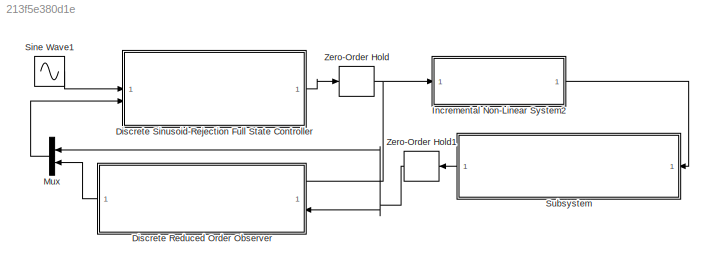
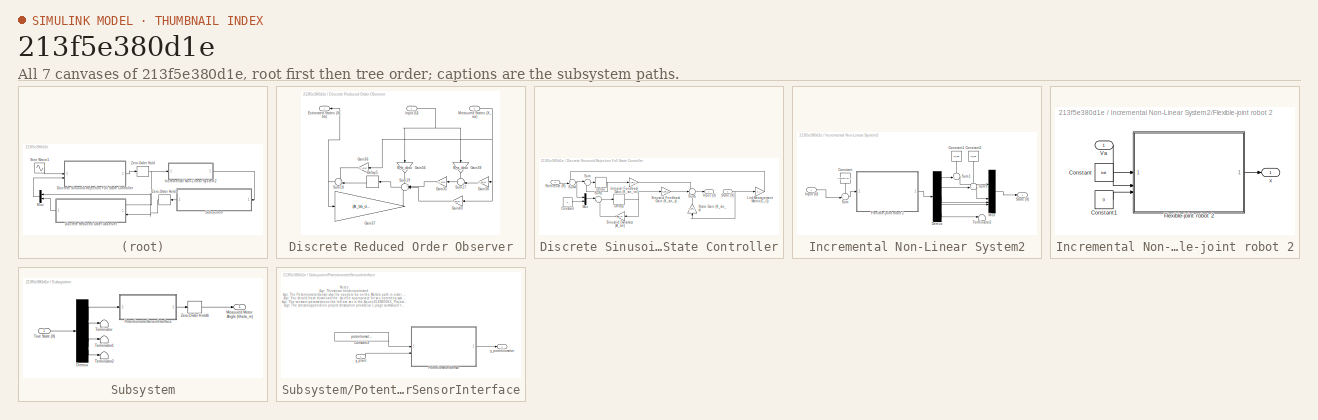
[diagram: thumbnail index - all 7 canvases of the model, root first then tree order]
MODEL slx_213f5e380d1e
KIND model
CONFIG AbsTol = auto
CONFIG EnableMultiTasking = off
CONFIG FixedStep = auto
CONFIG MaxStep = auto
CONFIG MinStep = auto
CONFIG RelTol = 1e-3
CONFIG SampleTimeConstraint = Unconstrained
CONFIG SolverName = VariableStepAuto
CONFIG StartTime = 0.0
CONFIG StopTime = 10.0
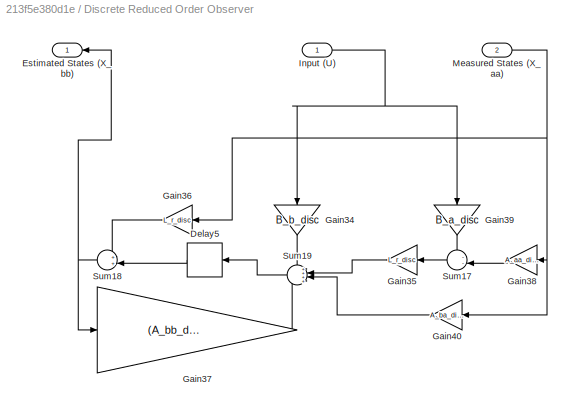
BLOCK [SubSystem] Discrete Reduced Order Observer
  NameLocation = top
BLOCK [Delay] Discrete Reduced Order Observer/Delay5
  DelayLength = 1
  InputPortMap = u0
  NameLocation = top
  SampleTime = min_sampling_time
BLOCK [Outport] Discrete Reduced Order Observer/Estimated States (X_bb)
  NameLocation = top
BLOCK [Gain] Discrete Reduced Order Observer/Gain34
  Gain = B_b_disc
  Multiplication = Matrix(K*u)
  NameLocation = left
BLOCK [Gain] Discrete Reduced Order Observer/Gain35
  Gain = L_r_disc
  Multiplication = Matrix(K*u)
  NameLocation = top
BLOCK [Gain] Discrete Reduced Order Observer/Gain36
  Gain = L_r_disc
  Multiplication = Matrix(K*u)
  NameLocation = top
BLOCK [Gain] Discrete Reduced Order Observer/Gain37
  Gain = (A_bb_disc - L_r_disc*A_ab_disc)
  Multiplication = Matrix(K*u)
BLOCK [Gain] Discrete Reduced Order Observer/Gain38
  Gain = A_aa_disc
  Multiplication = Matrix(K*u)
  NameLocation = top
BLOCK [Gain] Discrete Reduced Order Observer/Gain39
  Gain = B_a_disc
  Multiplication = Matrix(K*u)
  NameLocation = left
BLOCK [Gain] Discrete Reduced Order Observer/Gain40
  Gain = A_ba_disc
  Multiplication = Matrix(K*u)
  NameLocation = top
BLOCK [Inport] Discrete Reduced Order Observer/Input (U)
BLOCK [Inport] Discrete Reduced Order Observer/Measured States (X_aa)
  Port = 2
BLOCK [Sum] Discrete Reduced Order Observer/Sum17
  Inputs = --|
  NameLocation = top
BLOCK [Sum] Discrete Reduced Order Observer/Sum18
  Inputs = ++|
  NameLocation = top
BLOCK [Sum] Discrete Reduced Order Observer/Sum19
  Inputs = ++++
  NameLocation = top
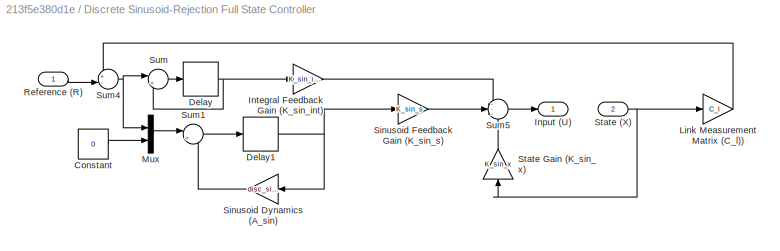
BLOCK [SubSystem] Discrete Sinusoid-Rejection Full State Controller
BLOCK [Constant] Discrete Sinusoid-Rejection Full State Controller/Constant
  Value = 0
BLOCK [Delay] Discrete Sinusoid-Rejection Full State Controller/Delay
  DelayLength = 1
  InputPortMap = u0
  SampleTime = min_sampling_time
BLOCK [Delay] Discrete Sinusoid-Rejection Full State Controller/Delay1
  DelayLength = 1
  InputPortMap = u0
  SampleTime = min_sampling_time
BLOCK [Outport] Discrete Sinusoid-Rejection Full State Controller/Input (U)
BLOCK [Gain] Discrete Sinusoid-Rejection Full State Controller/Integral Feedback Gain (K_sin_int)
  Gain = K_sin_int
BLOCK [Gain] Discrete Sinusoid-Rejection Full State Controller/Link Measurement Matrix (C_l))
  Gain = C_l
  Multiplication = Matrix(K*u)
BLOCK [Mux] Discrete Sinusoid-Rejection Full State Controller/Mux
  DisplayOption = bar
  Inputs = 2
BLOCK [Inport] Discrete Sinusoid-Rejection Full State Controller/Reference (R)
BLOCK [Gain] Discrete Sinusoid-Rejection Full State Controller/Sinusoid Dynamics (A_sin)
  Gain = disc_sinusoid_ss.A
  Multiplication = Matrix(K*u)
  NameLocation = top
BLOCK [Gain] Discrete Sinusoid-Rejection Full State Controller/Sinusoid Feedback Gain (K_sin_s)
  Gain = K_sin_s
  Multiplication = Matrix(K*u)
BLOCK [Inport] Discrete Sinusoid-Rejection Full State Controller/State (X)
  Port = 2
BLOCK [Gain] Discrete Sinusoid-Rejection Full State Controller/State Gain (K_sin_x)
  Gain = K_sin_x
  Multiplication = Matrix(K*u)
  NameLocation = right
BLOCK [Sum] Discrete Sinusoid-Rejection Full State Controller/Sum
  Inputs = |++
BLOCK [Sum] Discrete Sinusoid-Rejection Full State Controller/Sum1
  Inputs = |++
BLOCK [Sum] Discrete Sinusoid-Rejection Full State Controller/Sum4
  Inputs = +-|
BLOCK [Sum] Discrete Sinusoid-Rejection Full State Controller/Sum5
  Inputs = ---
BLOCK [SubSystem] Incremental Non-Linear System2
BLOCK [Constant] Incremental Non-Linear System2/Constant
  NameLocation = left
  Value = ((m*g*l/2)/K_m + I_noload)*R
BLOCK [Constant] Incremental Non-Linear System2/Constant1
  NameLocation = left
  Value = x1_bar
BLOCK [Constant] Incremental Non-Linear System2/Constant2
  NameLocation = left
  Value = x2_bar
BLOCK [Demux] Incremental Non-Linear System2/Demux
  Outputs = 5
BLOCK [SubSystem] Incremental Non-Linear System2/Flexible-joint robot 2
BLOCK [Constant] Incremental Non-Linear System2/Flexible-joint robot 2/Constant
  Value = init
BLOCK [Constant] Incremental Non-Linear System2/Flexible-joint robot 2/Constant1
  Value = 0
BLOCK [ModelReference] Incremental Non-Linear System2/Flexible-joint robot 2/Flexible-joint robot 2
  CopyOfModelProtected = on
  ModelNameDialog = Flexible_joint_robot_2
  ModelReferenceVersion = 1.65
BLOCK [Inport] Incremental Non-Linear System2/Flexible-joint robot 2/Va
BLOCK [Outport] Incremental Non-Linear System2/Flexible-joint robot 2/x
BLOCK [Inport] Incremental Non-Linear System2/Input (U)
BLOCK [Mux] Incremental Non-Linear System2/Mux
  DisplayOption = bar
BLOCK [Outport] Incremental Non-Linear System2/State (X)
BLOCK [Sum] Incremental Non-Linear System2/Sum
  Inputs = ++|
BLOCK [Sum] Incremental Non-Linear System2/Sum1
  Inputs = -+|
BLOCK [Sum] Incremental Non-Linear System2/Sum9
  Inputs = -+|
BLOCK [Terminator] Incremental Non-Linear System2/Terminator2
BLOCK [Mux] Mux
  DisplayOption = bar
  Inputs = 2
  NameLocation = top
BLOCK [Sin] Sine Wave1
  Amplitude = deg2rad(25)
  Bias = deg2rad(-5)
  Frequency = w
  SampleTime = 0
BLOCK [SubSystem] Subsystem
  NameLocation = top
BLOCK [Demux] Subsystem/Demux
BLOCK [Outport] Subsystem/Measured Motor Angle (\theta_m)
BLOCK [SubSystem] Subsystem/PotentiometerSensorInterface
  TreatAsAtomicUnit = on
BLOCK [Constant] Subsystem/PotentiometerSensorInterface/Constant3
  Value = potentiometer_linearity_percent
BLOCK [ModelReference] Subsystem/PotentiometerSensorInterface/PotentiometerSensor
  CopyOfModelProtected = on
  ModelNameDialog = PotentiometerSensor.slxp
  ModelReferenceVersion = 1.21
BLOCK [Inport] Subsystem/PotentiometerSensorInterface/y_plant
BLOCK [Outport] Subsystem/PotentiometerSensorInterface/y_potentiometer
BLOCK [Terminator] Subsystem/Terminator
BLOCK [Terminator] Subsystem/Terminator1
BLOCK [Terminator] Subsystem/Terminator2
BLOCK [Inport] Subsystem/True State (X)
BLOCK [ZeroOrderHold] Subsystem/Zero-Order Hold6
  SampleTime = min_sampling_time
BLOCK [ZeroOrderHold] Zero-Order Hold
  SampleTime = min_sampling_time
BLOCK [ZeroOrderHold] Zero-Order Hold1
  NameLocation = top
  SampleTime = min_sampling_time
ANNOTATION Subsystem/PotentiometerSensorInterface: Notes: > This sensor block is protected. > The PotentiometerSensor.slxp file needs to be on the Matlab path in order to simulate this sensor. > You should have download the .slpx file appropriate for you operating system {Windows, Mac, Linux}. > The constant parameters on the left are set in the " ELEN90064_Project_Parameters.m " script. > The sensors appendix in project description provides a 1-p...<+188ch>
LINE Discrete Reduced Order Observer/Delay5:1 -> Discrete Reduced Order Observer/Sum18:2
LINE Discrete Reduced Order Observer/Gain34:1 -> Discrete Reduced Order Observer/Sum19:1
LINE Discrete Reduced Order Observer/Gain35:1 -> Discrete Reduced Order Observer/Sum19:2
LINE Discrete Reduced Order Observer/Gain36:1 -> Discrete Reduced Order Observer/Sum18:1
LINE Discrete Reduced Order Observer/Gain37:1 -> Discrete Reduced Order Observer/Sum19:4
LINE Discrete Reduced Order Observer/Gain38:1 -> Discrete Reduced Order Observer/Sum17:2
LINE Discrete Reduced Order Observer/Gain39:1 -> Discrete Reduced Order Observer/Sum17:1
LINE Discrete Reduced Order Observer/Gain40:1 -> Discrete Reduced Order Observer/Sum19:3
NET Discrete Reduced Order Observer/Input (U):1 -> Discrete Reduced Order Observer/Gain34:1, Discrete Reduced Order Observer/Gain39:1
NET Discrete Reduced Order Observer/Measured States (X_aa):1 -> Discrete Reduced Order Observer/Gain36:1, Discrete Reduced Order Observer/Gain38:1, Discrete Reduced Order Observer/Gain40:1
LINE Discrete Reduced Order Observer/Sum17:1 -> Discrete Reduced Order Observer/Gain35:1
NET Discrete Reduced Order Observer/Sum18:1 -> Discrete Reduced Order Observer/Estimated States (X_bb):1, Discrete Reduced Order Observer/Gain37:1
LINE Discrete Reduced Order Observer/Sum19:1 -> Discrete Reduced Order Observer/Delay5:1
LINE Discrete Reduced Order Observer:1 -> Mux:2
LINE Discrete Sinusoid-Rejection Full State Controller/Constant:1 -> Discrete Sinusoid-Rejection Full State Controller/Mux:2
NET Discrete Sinusoid-Rejection Full State Controller/Delay1:1 -> Discrete Sinusoid-Rejection Full State Controller/Sinusoid Dynamics (A_sin):1, Discrete Sinusoid-Rejection Full State Controller/Sinusoid Feedback Gain (K_sin_s):1
NET Discrete Sinusoid-Rejection Full State Controller/Delay:1 -> Discrete Sinusoid-Rejection Full State Controller/Integral Feedback Gain (K_sin_int):1, Discrete Sinusoid-Rejection Full State Controller/Sum:2
LINE Discrete Sinusoid-Rejection Full State Controller/Integral Feedback Gain (K_sin_int):1 -> Discrete Sinusoid-Rejection Full State Controller/Sum5:1
LINE Discrete Sinusoid-Rejection Full State Controller/Link Measurement Matrix (C_l)):1 -> Discrete Sinusoid-Rejection Full State Controller/Sum4:1
LINE Discrete Sinusoid-Rejection Full State Controller/Mux:1 -> Discrete Sinusoid-Rejection Full State Controller/Sum1:1
LINE Discrete Sinusoid-Rejection Full State Controller/Reference (R):1 -> Discrete Sinusoid-Rejection Full State Controller/Sum4:2
LINE Discrete Sinusoid-Rejection Full State Controller/Sinusoid Dynamics (A_sin):1 -> Discrete Sinusoid-Rejection Full State Controller/Sum1:2
LINE Discrete Sinusoid-Rejection Full State Controller/Sinusoid Feedback Gain (K_sin_s):1 -> Discrete Sinusoid-Rejection Full State Controller/Sum5:2
NET Discrete Sinusoid-Rejection Full State Controller/State (X):1 -> Discrete Sinusoid-Rejection Full State Controller/Link Measurement Matrix (C_l)):1, Discrete Sinusoid-Rejection Full State Controller/State Gain (K_sin_x):1
LINE Discrete Sinusoid-Rejection Full State Controller/State Gain (K_sin_x):1 -> Discrete Sinusoid-Rejection Full State Controller/Sum5:3
LINE Discrete Sinusoid-Rejection Full State Controller/Sum1:1 -> Discrete Sinusoid-Rejection Full State Controller/Delay1:1
NET Discrete Sinusoid-Rejection Full State Controller/Sum4:1 -> Discrete Sinusoid-Rejection Full State Controller/Mux:1, Discrete Sinusoid-Rejection Full State Controller/Sum:1
LINE Discrete Sinusoid-Rejection Full State Controller/Sum5:1 -> Discrete Sinusoid-Rejection Full State Controller/Input (U):1
LINE Discrete Sinusoid-Rejection Full State Controller/Sum:1 -> Discrete Sinusoid-Rejection Full State Controller/Delay:1
LINE Discrete Sinusoid-Rejection Full State Controller:1 -> Zero-Order Hold:1
LINE Incremental Non-Linear System2/Constant1:1 -> Incremental Non-Linear System2/Sum1:1
LINE Incremental Non-Linear System2/Constant2:1 -> Incremental Non-Linear System2/Sum9:1
LINE Incremental Non-Linear System2/Constant:1 -> Incremental Non-Linear System2/Sum:1
LINE Incremental Non-Linear System2/Demux:1 -> Incremental Non-Linear System2/Sum1:2
LINE Incremental Non-Linear System2/Demux:2 -> Incremental Non-Linear System2/Sum9:2
LINE Incremental Non-Linear System2/Demux:3 -> Incremental Non-Linear System2/Mux:3
LINE Incremental Non-Linear System2/Demux:4 -> Incremental Non-Linear System2/Mux:4
LINE Incremental Non-Linear System2/Demux:5 -> Incremental Non-Linear System2/Terminator2:1
LINE Incremental Non-Linear System2/Flexible-joint robot 2/Constant1:1 -> Incremental Non-Linear System2/Flexible-joint robot 2/Flexible-joint robot 2:3
LINE Incremental Non-Linear System2/Flexible-joint robot 2/Constant:1 -> Incremental Non-Linear System2/Flexible-joint robot 2/Flexible-joint robot 2:2
LINE Incremental Non-Linear System2/Flexible-joint robot 2/Flexible-joint robot 2:1 -> Incremental Non-Linear System2/Flexible-joint robot 2/x:1
LINE Incremental Non-Linear System2/Flexible-joint robot 2/Va:1 -> Incremental Non-Linear System2/Flexible-joint robot 2/Flexible-joint robot 2:1
LINE Incremental Non-Linear System2/Flexible-joint robot 2:1 -> Incremental Non-Linear System2/Demux:1
LINE Incremental Non-Linear System2/Input (U):1 -> Incremental Non-Linear System2/Sum:2
LINE Incremental Non-Linear System2/Mux:1 -> Incremental Non-Linear System2/State (X):1
LINE Incremental Non-Linear System2/Sum1:1 -> Incremental Non-Linear System2/Mux:1
LINE Incremental Non-Linear System2/Sum9:1 -> Incremental Non-Linear System2/Mux:2
LINE Incremental Non-Linear System2/Sum:1 -> Incremental Non-Linear System2/Flexible-joint robot 2:1
LINE Incremental Non-Linear System2:1 -> Subsystem:1
LINE Mux:1 -> Discrete Sinusoid-Rejection Full State Controller:2
LINE Sine Wave1:1 -> Discrete Sinusoid-Rejection Full State Controller:1
LINE Subsystem/Demux:1 -> Subsystem/PotentiometerSensorInterface:1
LINE Subsystem/Demux:2 -> Subsystem/Terminator:1
LINE Subsystem/Demux:3 -> Subsystem/Terminator1:1
LINE Subsystem/Demux:4 -> Subsystem/Terminator2:1
LINE Subsystem/PotentiometerSensorInterface/Constant3:1 -> Subsystem/PotentiometerSensorInterface/PotentiometerSensor:1
LINE Subsystem/PotentiometerSensorInterface/PotentiometerSensor:1 -> Subsystem/PotentiometerSensorInterface/y_potentiometer:1
LINE Subsystem/PotentiometerSensorInterface/y_plant:1 -> Subsystem/PotentiometerSensorInterface/PotentiometerSensor:2
LINE Subsystem/PotentiometerSensorInterface:1 -> Subsystem/Zero-Order Hold6:1
LINE Subsystem/True State (X):1 -> Subsystem/Demux:1
LINE Subsystem/Zero-Order Hold6:1 -> Subsystem/Measured Motor Angle (\theta_m):1
LINE Subsystem:1 -> Zero-Order Hold1:1
NET Zero-Order Hold1:1 -> Discrete Reduced Order Observer:2, Mux:1
NET Zero-Order Hold:1 -> Discrete Reduced Order Observer:1, Incremental Non-Linear System2:1
note: NET lines group one-source signal fan-out (src -> all destinations, sorted); 1:1 wires keep LINE
